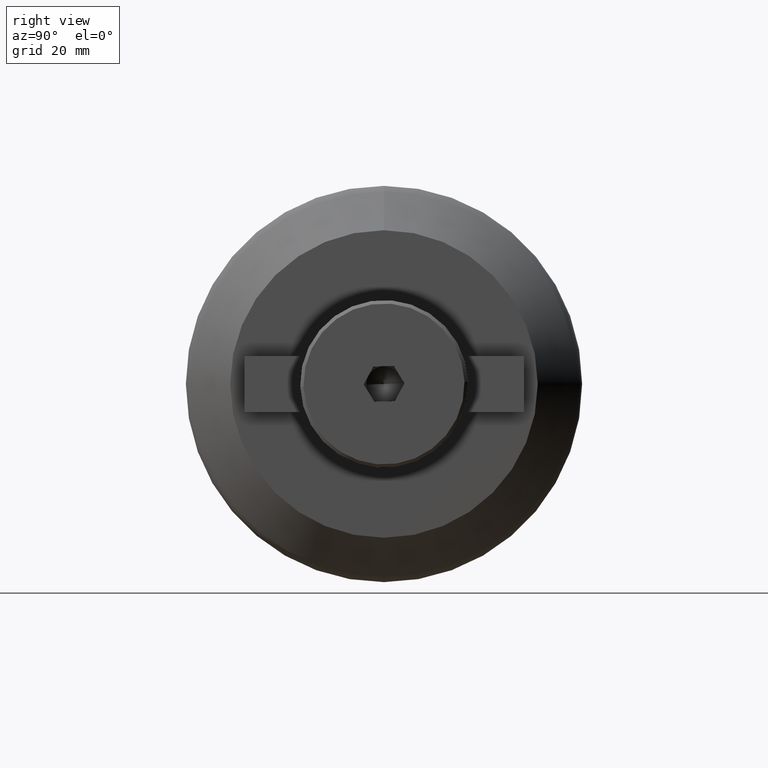
[diagram: clean part render]
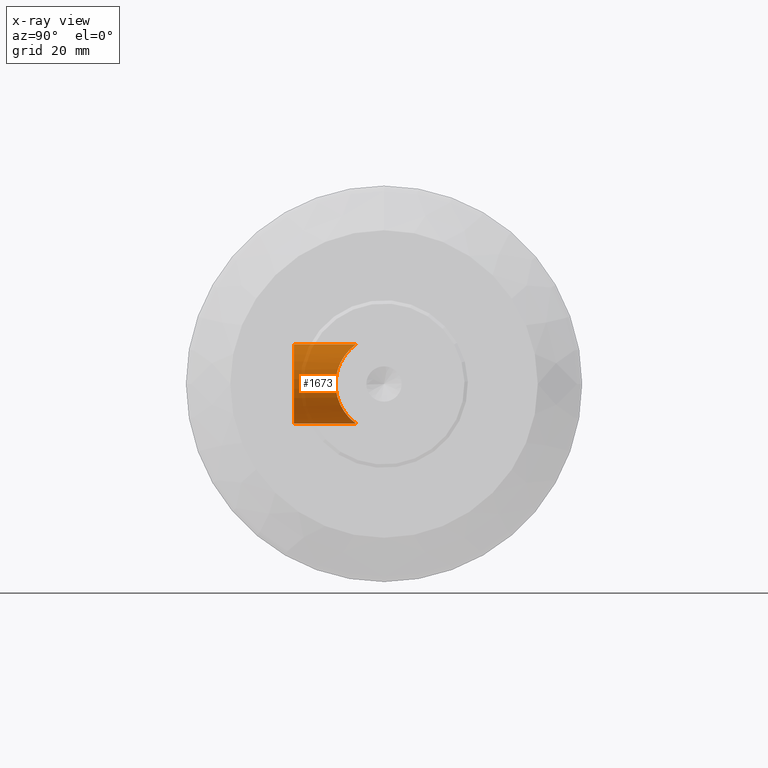
[diagram: x-ray — body ghosted, one internal face saturated and labeled with its STEP entity id]
A machine part, right view, then the same camera in x-ray: the body is ghosted and one INTERNAL B-rep face — a face not visible from any outside direction — is saturated and labeled: STEP entity #1673.
In plain terms, the highlighted cylindrical surface (partial cylindrical patch) has radius 9 mm, axis along (0, 1, 0).
Its self-contained STEP definition (entity closure, byte-faithful):
#124 = ORIENTED_EDGE ( 'NONE', *, *, #3137, .F. ) ;
#581 = CARTESIAN_POINT ( 'NONE',  ( 37.99999999999999300, -20.45299999999999900, 9.000000000000001800 ) ) ;
#603 = CARTESIAN_POINT ( 'NONE',  ( 37.99999999999999300, -20.45299999999999900, -9.000000000000001800 ) ) ;
#833 = CARTESIAN_POINT ( 'NONE',  ( 37.99999999999982900, -6.324555320337297300, 9.000000000000078200 ) ) ;
#841 = CARTESIAN_POINT ( 'NONE',  ( 37.99999999999999300, -6.324555320336754600, -9.000000000000003600 ) ) ;
#1006 = ORIENTED_EDGE ( 'NONE', *, *, #3311, .F. ) ;
#1007 = ORIENTED_EDGE ( 'NONE', *, *, #3108, .F. ) ;
#1010 = ORIENTED_EDGE ( 'NONE', *, *, #3252, .T. ) ;
#1673 = ADVANCED_FACE ( 'NONE', ( #4408 ), #4399, .F. ) ;
#2057 = EDGE_LOOP ( 'NONE', ( #124, #1006, #1010, #1007 ) ) ;
#2424 = LINE ( 'NONE', #7366, #2425 ) ;
#2425 = VECTOR ( 'NONE', #7368, 1000.000000000000000 ) ;
#2510 = CIRCLE ( 'NONE', #2875, 9.000000000000001800 ) ;
#2875 = AXIS2_PLACEMENT_3D ( 'NONE', #7397, #7585, #7515 ) ;
#2928 = B_SPLINE_CURVE_WITH_KNOTS ( 'NONE', 3,
 ( #6786, #6802, #6810, #6811, #6807, #6808, #6809, #6806, #6803, #6805, #6665, #6668, #6694, #6693, #6692, #6691, #6690, #6689, #6688, #6687, #6686, #6685, #6684, #6667, #6666, #6697, #6696, #6695, #6683, #6682, #6570, #6531, #6553, #6554, #6551, #6552, #6543, #6544, #6549, #6550, #6548, #6547, #6546, #6545, #6527, #6333, #6526, #6272, #6465, #6529, #6530, #6528, #6555, #6561 ),
 .UNSPECIFIED., .F., .F.,
 ( 4, 2, 2, 2, 2, 2, 2, 2, 2, 2, 2, 2, 2, 2, 2, 2, 2, 2, 2, 2, 2, 2, 2, 2, 2, 2, 4 ),
 ( 0.02997932417630955200, 0.03091598688851944800, 0.03185264960072934500, 0.03372597502514915200, 0.03559930044956896600, 0.03653596316177886600, 0.03747262587398877300, 0.03934595129840857300, 0.04028261401061847300, 0.04121927672282836600, 0.04309260214724816600, 0.04402926485945806600, 0.04496592757166795900, 0.04590259028387785900, 0.04683925299608775200, 0.04777591570829764500, 0.04871257842050754500, 0.05058590384492733100, 0.05152256655713723100, 0.05245922926934713100, 0.05339589198155703100, 0.05433255469376693100, 0.05620588011818671000, 0.05714254283039660300, 0.05807920554260650300, 0.05901586825481640300, 0.05995253096702629600 ),
 .UNSPECIFIED. ) ;
#3108 = EDGE_CURVE ( 'NONE', #8336, #8334, #2928, .T. ) ;
#3137 = EDGE_CURVE ( 'NONE', #8292, #8336, #5662, .T. ) ;
#3252 = EDGE_CURVE ( 'NONE', #8297, #8334, #2424, .T. ) ;
#3311 = EDGE_CURVE ( 'NONE', #8297, #8292, #2510, .T. ) ;
#3803 = DIRECTION ( 'NONE',  ( -0.0000000000000000000, 1.000000000000000000, -0.0000000000000000000 ) ) ;
#4399 = CYLINDRICAL_SURFACE ( 'NONE', #7007, 9.000000000000003600 ) ;
#4408 = FACE_OUTER_BOUND ( 'NONE', #2057, .T. ) ;
#5013 = DIRECTION ( 'NONE',  ( -0.0000000000000000000, 1.000000000000000000, -0.0000000000000000000 ) ) ;
#5160 = DIRECTION ( 'NONE',  ( 0.0000000000000000000, 0.0000000000000000000, 1.000000000000000000 ) ) ;
#5520 = CARTESIAN_POINT ( 'NONE',  ( 37.99999999999999300, -45.00000000000000000, 0.0000000000000000000 ) ) ;
#5662 = LINE ( 'NONE', #6455, #5669 ) ;
#5669 = VECTOR ( 'NONE', #3803, 1000.000000000000000 ) ;
#6272 = CARTESIAN_POINT ( 'NONE',  ( 40.43758875102926700, -6.773151438223587600, 8.668594485892475300 ) ) ;
#6333 = CARTESIAN_POINT ( 'NONE',  ( 41.26756004608849100, -7.115117841734856600, 8.390691223271488800 ) ) ;
#6455 = CARTESIAN_POINT ( 'NONE',  ( 37.99999999999999300, -45.00000000000000000, -9.000000000000003600 ) ) ;
#6465 = CARTESIAN_POINT ( 'NONE',  ( 40.14417004229316200, -6.672033518611990600, 8.746130474273467600 ) ) ;
#6526 = CARTESIAN_POINT ( 'NONE',  ( 40.99792248244988000, -6.994374932525728300, 8.491102994853573400 ) ) ;
#6527 = CARTESIAN_POINT ( 'NONE',  ( 42.05129833255504900, -7.496988139732035700, 8.056647767958622800 ) ) ;
#6528 = CARTESIAN_POINT ( 'NONE',  ( 38.63241241971884000, -6.348810466722629700, 8.983078160859578900 ) ) ;
#6529 = CARTESIAN_POINT ( 'NONE',  ( 39.54960080873356500, -6.505369226234754400, 8.870794822159663100 ) ) ;
#6530 = CARTESIAN_POINT ( 'NONE',  ( 39.24753997425402500, -6.439239462942334800, 8.918479843861575800 ) ) ;
#6531 = CARTESIAN_POINT ( 'NONE',  ( 46.48259625703188600, -10.58071000996650200, 3.022975485109894200 ) ) ;
#6543 = CARTESIAN_POINT ( 'NONE',  ( 45.06061911621537800, -9.478236986029871900, 5.588225433440637600 ) ) ;
#6544 = CARTESIAN_POINT ( 'NONE',  ( 44.69436173205068000, -9.208643388611756500, 6.022136398295418600 ) ) ;
#6545 = CARTESIAN_POINT ( 'NONE',  ( 42.54069967077212800, -7.777229871337429900, 7.790658944439933000 ) ) ;
#6546 = CARTESIAN_POINT ( 'NONE',  ( 43.23739431678273300, -8.209575931333878500, 7.324464543071713700 ) ) ;
#6547 = CARTESIAN_POINT ( 'NONE',  ( 43.46337127312004600, -8.355986537263469000, 7.157469761059689800 ) ) ;
#6548 = CARTESIAN_POINT ( 'NONE',  ( 43.89610422887615500, -8.645121770151423100, 6.805420925311388200 ) ) ;
#6549 = CARTESIAN_POINT ( 'NONE',  ( 44.50299915674345600, -9.070227025113872800, 6.228095582515766000 ) ) ;
#6550 = CARTESIAN_POINT ( 'NONE',  ( 44.10386877238172300, -8.788471667187465600, 6.619740072472756000 ) ) ;
#6551 = CARTESIAN_POINT ( 'NONE',  ( 45.72938141114561000, -9.984873728867770000, 4.646559155060550100 ) ) ;
#6552 = CARTESIAN_POINT ( 'NONE',  ( 45.23616714022042400, -9.609927495919183800, 5.359230109251159400 ) ) ;
#6553 = CARTESIAN_POINT ( 'NONE',  ( 46.37513096970884900, -10.49464205608620300, 3.308720680275713600 ) ) ;
#6554 = CARTESIAN_POINT ( 'NONE',  ( 46.01577456462830200, -10.20937874570882700, 4.136322440102841100 ) ) ;
#6555 = CARTESIAN_POINT ( 'NONE',  ( 38.31746747245787800, -6.324555320336762600, 9.000000000000007100 ) ) ;
#6561 = CARTESIAN_POINT ( 'NONE',  ( 37.99999999999982900, -6.324555320337297300, 9.000000000000078200 ) ) ;
#6570 = CARTESIAN_POINT ( 'NONE',  ( 46.66760810845060800, -10.72960462351119100, 2.442414731716947300 ) ) ;
#6665 = CARTESIAN_POINT ( 'NONE',  ( 43.45653668630526300, -8.351529607590672200, -7.162630017601378200 ) ) ;
#6666 = CARTESIAN_POINT ( 'NONE',  ( 46.99928483042609900, -10.99941486172795600, -0.3318139073566009900 ) ) ;
#6667 = CARTESIAN_POINT ( 'NONE',  ( 46.98243211327050500, -10.98561425411707000, -0.6432021774063094700 ) ) ;
#6668 = CARTESIAN_POINT ( 'NONE',  ( 43.88759775224713200, -8.639332235174995500, -6.812727360299545500 ) ) ;
#6682 = CARTESIAN_POINT ( 'NONE',  ( 46.74585106358330200, -10.79298596828219700, 2.146096540715382300 ) ) ;
#6683 = CARTESIAN_POINT ( 'NONE',  ( 46.87253691795825000, -10.89589586246527200, 1.540691347388887500 ) ) ;
#6684 = CARTESIAN_POINT ( 'NONE',  ( 46.91612351217000300, -10.93146341324059600, -1.265123403570826100 ) ) ;
#6685 = CARTESIAN_POINT ( 'NONE',  ( 46.86611209507314200, -10.89066197485386500, -1.577329599810565900 ) ) ;
#6686 = CARTESIAN_POINT ( 'NONE',  ( 46.67201523968022800, -10.73303995099937000, -2.485920569551099700 ) ) ;
#6687 = CARTESIAN_POINT ( 'NONE',  ( 46.48426076031908100, -10.58116722006071300, -3.062465036862893600 ) ) ;
#6688 = CARTESIAN_POINT ( 'NONE',  ( 46.12226849291563700, -10.29397154860355100, -3.888328396208875000 ) ) ;
#6689 = CARTESIAN_POINT ( 'NONE',  ( 45.98876279001347500, -10.18883133069318300, -4.155091366563161700 ) ) ;
#6690 = CARTESIAN_POINT ( 'NONE',  ( 45.70289006612480200, -9.966266519665993000, -4.663753832353017400 ) ) ;
#6691 = CARTESIAN_POINT ( 'NONE',  ( 45.54983857994444200, -9.848293230677800400, -4.907236627955189300 ) ) ;
#6692 = CARTESIAN_POINT ( 'NONE',  ( 45.06202882861029500, -9.477738077880649900, -5.608197967950848900 ) ) ;
#6693 = CARTESIAN_POINT ( 'NONE',  ( 44.69902397215958000, -9.208474581211643100, -6.036457715081470900 ) ) ;
#6694 = CARTESIAN_POINT ( 'NONE',  ( 44.09687597052867900, -8.783602170141929100, -6.626238705432832900 ) ) ;
#6695 = CARTESIAN_POINT ( 'NONE',  ( 46.92117575948942200, -10.93558575195800000, 1.229394952563907200 ) ) ;
#6696 = CARTESIAN_POINT ( 'NONE',  ( 46.98520516997832200, -10.98788290588002100, 0.6040504403491777600 ) ) ;
#6697 = CARTESIAN_POINT ( 'NONE',  ( 47.00067072176241100, -11.00054877189566900, 0.2918124169082679200 ) ) ;
#6786 = CARTESIAN_POINT ( 'NONE',  ( 37.99999999999999300, -6.324555320336754600, -9.000000000000003600 ) ) ;
#6802 = CARTESIAN_POINT ( 'NONE',  ( 38.31295146527097000, -6.324555320336756400, -9.000000000000003600 ) ) ;
#6803 = CARTESIAN_POINT ( 'NONE',  ( 42.54394238459283200, -7.779283033584959200, -7.788385423207047100 ) ) ;
#6805 = CARTESIAN_POINT ( 'NONE',  ( 43.23402882798426100, -8.207467075943773300, -7.326768196248651500 ) ) ;
#6806 = CARTESIAN_POINT ( 'NONE',  ( 42.05461547428917900, -7.498357647435787100, -8.055568128153831600 ) ) ;
#6807 = CARTESIAN_POINT ( 'NONE',  ( 39.54976340284998300, -6.505455086465421900, -8.870726595185532300 ) ) ;
#6808 = CARTESIAN_POINT ( 'NONE',  ( 40.43821651174813100, -6.754377607669277400, -8.684545351785477200 ) ) ;
#6809 = CARTESIAN_POINT ( 'NONE',  ( 40.99412497202110500, -6.982137574739820000, -8.506897211298190000 ) ) ;
#6810 = CARTESIAN_POINT ( 'NONE',  ( 38.62378268100995600, -6.347894227592905600, -8.983724380777520200 ) ) ;
#6811 = CARTESIAN_POINT ( 'NONE',  ( 39.24143426781728300, -6.437997773600919500, -8.919374952405206600 ) ) ;
#7007 = AXIS2_PLACEMENT_3D ( 'NONE', #5520, #5013, #5160 ) ;
#7366 = CARTESIAN_POINT ( 'NONE',  ( 37.99999999999999300, -45.00000000000000000, 9.000000000000003600 ) ) ;
#7368 = DIRECTION ( 'NONE',  ( -0.0000000000000000000, 1.000000000000000000, -0.0000000000000000000 ) ) ;
#7397 = CARTESIAN_POINT ( 'NONE',  ( 37.99999999999999300, -20.45299999999999900, 0.0000000000000000000 ) ) ;
#7515 = DIRECTION ( 'NONE',  ( 0.0000000000000000000, 0.0000000000000000000, 1.000000000000000000 ) ) ;
#7585 = DIRECTION ( 'NONE',  ( -0.0000000000000000000, 1.000000000000000000, -0.0000000000000000000 ) ) ;
#8292 = VERTEX_POINT ( 'NONE', #603 ) ;
#8297 = VERTEX_POINT ( 'NONE', #581 ) ;
#8334 = VERTEX_POINT ( 'NONE', #833 ) ;
#8336 = VERTEX_POINT ( 'NONE', #841 ) ;